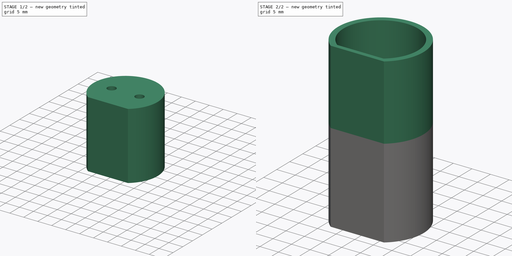
[diagram: build sequence overview — one tinted view per stage of 2, left to right]
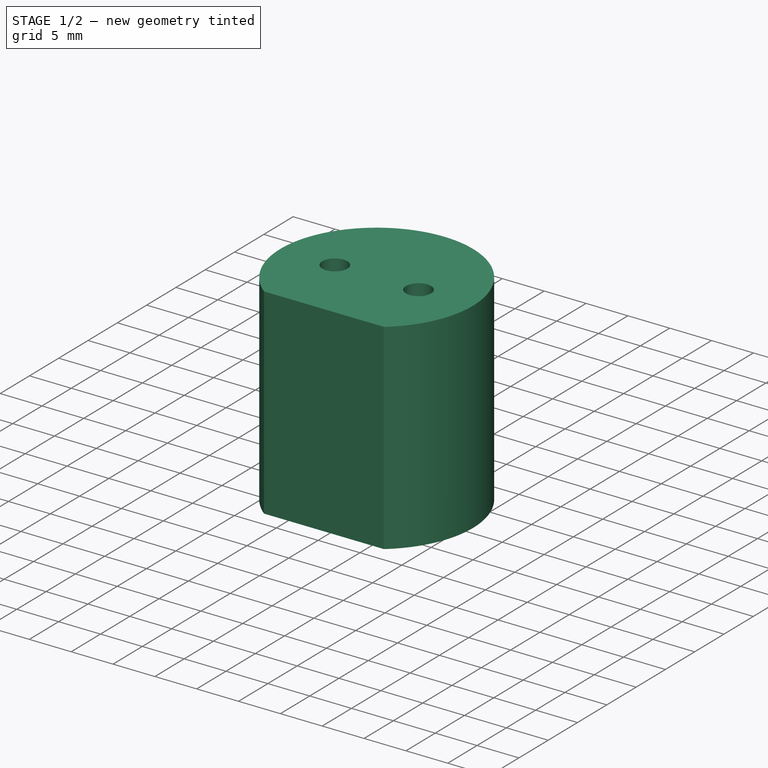
[diagram: stage 1 of 2 — iso view after this stage's code; geometry added in this stage tinted green]
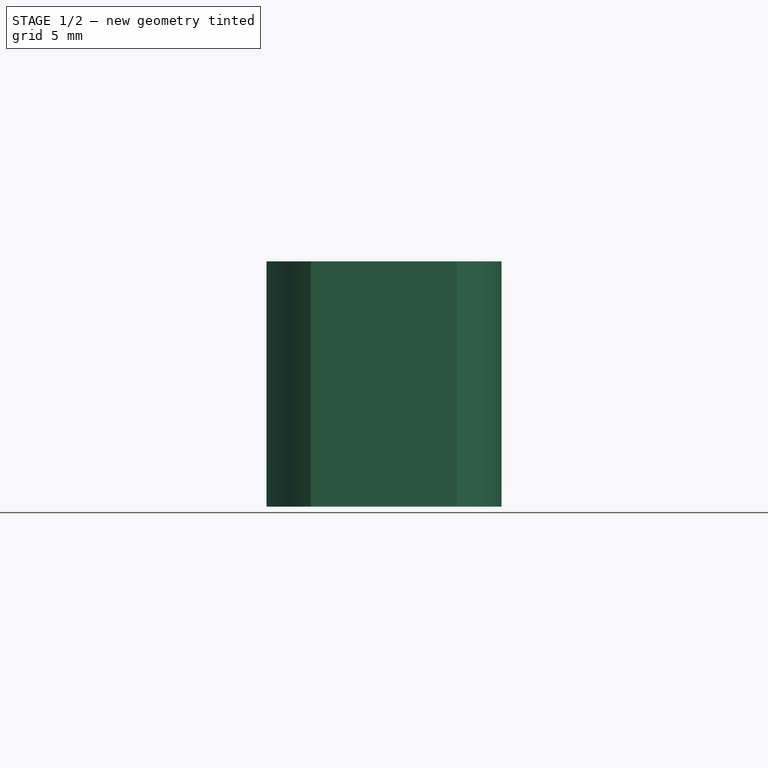
[diagram: stage 1 of 2 — front view after this stage's code; geometry added in this stage tinted green]
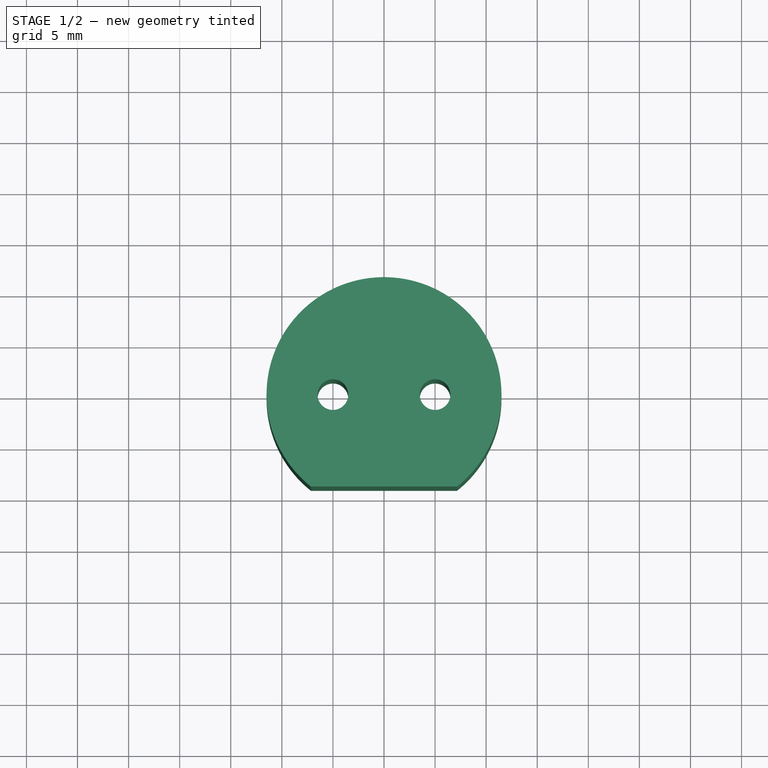
[diagram: stage 1 of 2 — top view after this stage's code; geometry added in this stage tinted green]
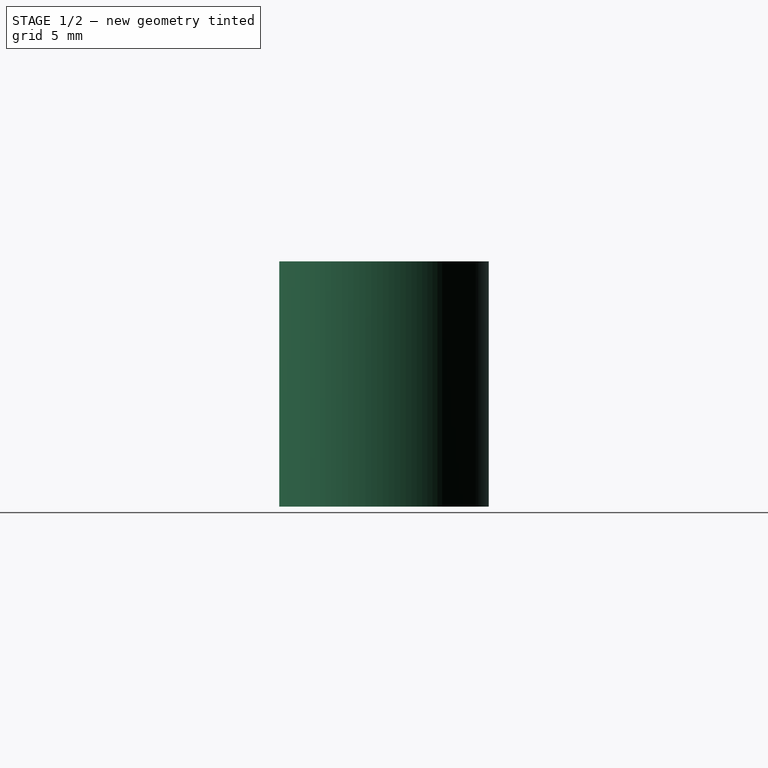
[diagram: stage 1 of 2 — right view after this stage's code; geometry added in this stage tinted green]
FCSTD DOCUMENT  (FreeCAD 0.18R16146 (Git))
Label: bottom
License: All rights reserved
LicenseURL: http://en.wikipedia.org/wiki/All_rights_reserved
objects: Sketcher::SketchObject×2, PartDesign::Pad×2, PartDesign::Body×2
note: 8 computed .brp shape members not serialized (recipe doc carries the construction recipe); baked Part::Feature solids carry a one-line shape summary decoded from their .brp

FEATURE [Sketcher::SketchObject] Sketch
  MapMode = 5
  Support = -> [XY_Plane]
  sketch-geometry (6):
    g0: Circle [constr] CenterX=0 CenterY=0 CenterZ=0 NormalX=0 NormalY=0 NormalZ=1 AngleXU=0 Radius=11.5
    g1: LineSegment StartX=-7.15891 StartY=-9 StartZ=0 EndX=7.15891 EndY=-9 EndZ=0
    g2: GeomPoint X=0 Y=11.5 Z=0
    g3: ArcOfCircle CenterX=8e-16 CenterY=-1e-16 CenterZ=0 NormalX=0 NormalY=0 NormalZ=1 AngleXU=0 Radius=11.5 StartAngle=5.38434 EndAngle=10.3236
    g4: Circle CenterX=-5 CenterY=0 CenterZ=0 NormalX=0 NormalY=0 NormalZ=1 AngleXU=0 Radius=1.5
    g5: Circle CenterX=5 CenterY=0 CenterZ=0 NormalX=0 NormalY=0 NormalZ=1 AngleXU=0 Radius=1.5
  constraints (17):
    c: Coincident(g0,g-1)
    c: Radius(g0) = 11.5
    c: PointOnObject(g1,g0)
    c: PointOnObject(g1,g0)
    c: Horizontal(g1)
    c: PointOnObject(g2,g-2)
    c: PointOnObject(g2,g0)
    c: Distance(g2,g1) = 20.5
    c: Coincident(g3,g1)
    c: Coincident(g3,g1)
    c: Radius(g3) = 11.5
    c: PointOnObject(g5,g-1)
    c: PointOnObject(g4,g-1)
    c: Distance(g4,g3) = 5
    c: Distance(g5,g3) = 5
    c: Radius(g5) = 1.5
    c: Radius(g4) = 1.5
FEATURE [PartDesign::Pad] Pad
  Length = 24
  Length2 = 100
  Profile = -> Sketch
  Type = 0
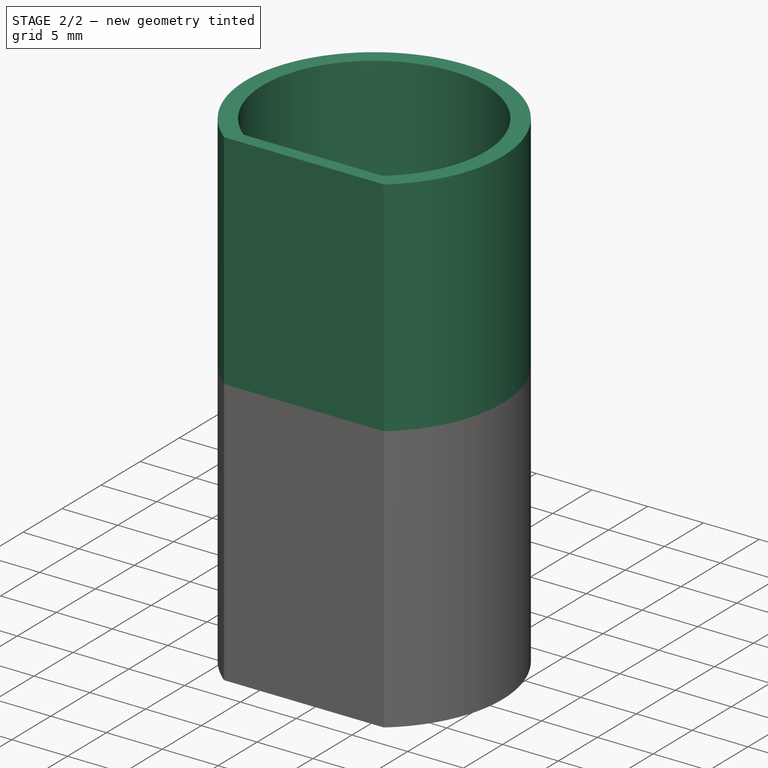
[diagram: stage 2 of 2 — iso view after this stage's code; geometry added in this stage tinted green]
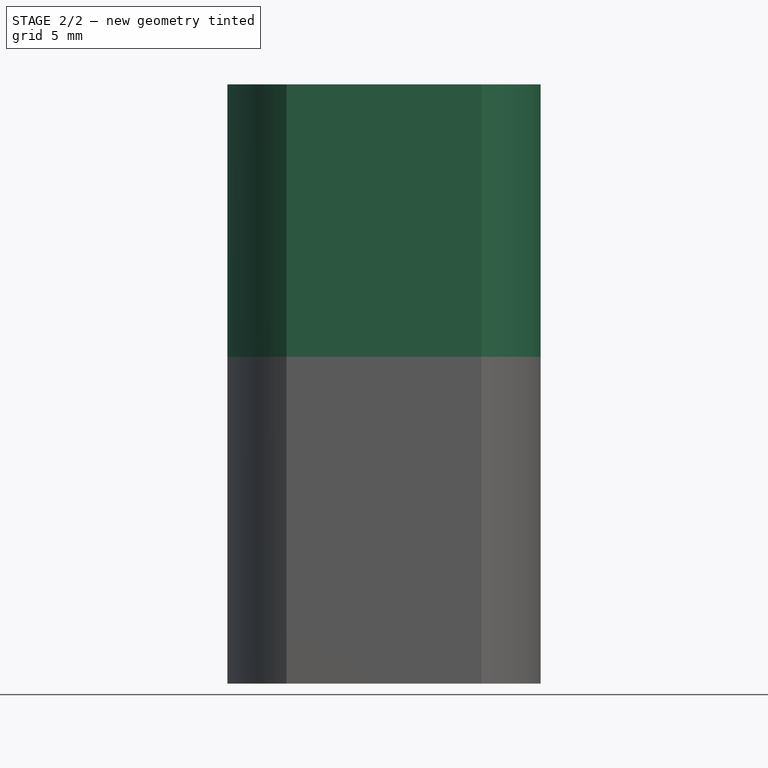
[diagram: stage 2 of 2 — front view after this stage's code; geometry added in this stage tinted green]
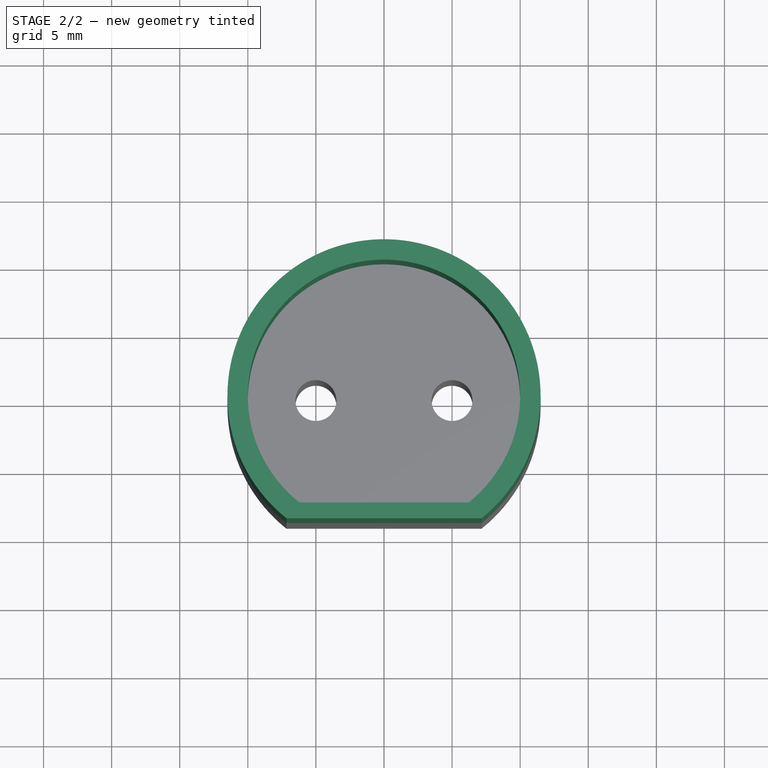
[diagram: stage 2 of 2 — top view after this stage's code; geometry added in this stage tinted green]
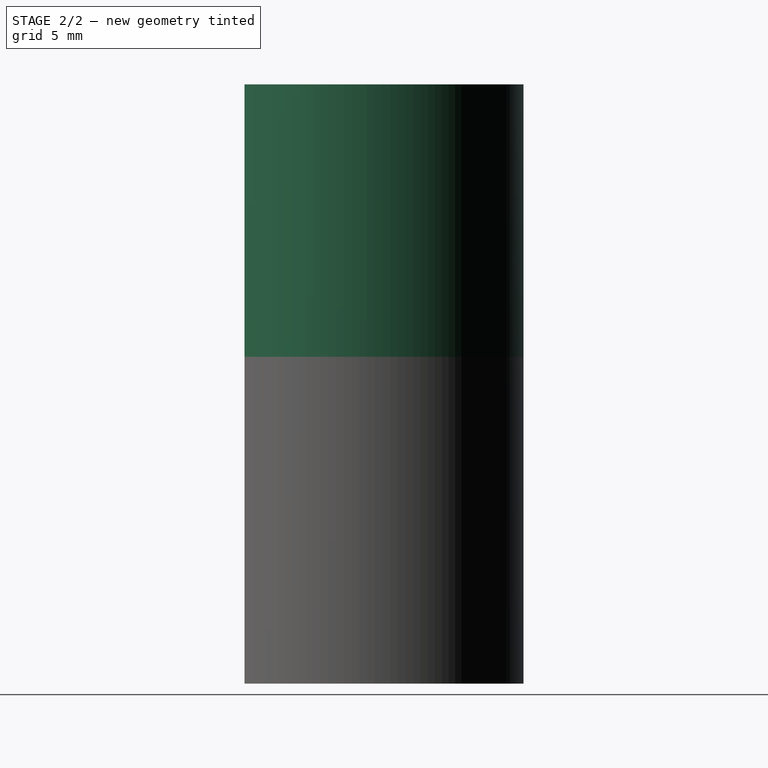
[diagram: stage 2 of 2 — right view after this stage's code; geometry added in this stage tinted green]
FEATURE [Sketcher::SketchObject] Sketch001
  MapMode = 5
  Placement = pos=(0,0,24) rot=(0,0,1;0rad)
  Support = -> [Pad]
  sketch-geometry (4):
    g0: ArcOfCircle CenterX=0 CenterY=0 CenterZ=0 NormalX=0 NormalY=0 NormalZ=1 AngleXU=0 Radius=11.5 StartAngle=5.38434 EndAngle=10.3236
    g1: LineSegment StartX=-7.15891 StartY=-9 StartZ=0 EndX=7.15891 EndY=-9 EndZ=0
    g2: ArcOfCircle CenterX=0 CenterY=0 CenterZ=0 NormalX=0 NormalY=0 NormalZ=1 AngleXU=0 Radius=10 StartAngle=5.38434 EndAngle=10.3236
    g3: LineSegment StartX=-6.22515 StartY=-7.82608 StartZ=0 EndX=6.22515 EndY=-7.82608 EndZ=0
  constraints (12):
    c: Coincident(g1,g0)
    c: Coincident(g0,g1)
    c: Coincident(g0,g-1)
    c: Horizontal(g1)
    c: Radius(g0) = 11.5
    c: Distance(g0,g1) = 9
    c: Coincident(g2,g0)
    c: Radius(g2) = 10
    c: Distance(g0,g2) = 1.5
    c: Horizontal(g3)
    c: Coincident(g3,g2)
    c: Coincident(g3,g2)
FEATURE [PartDesign::Pad] Pad001
  BaseFeature = -> Pad
  Length = 20
  Length2 = 100
  Profile = -> Sketch001
  Type = 0
FEATURE [PartDesign::Body] Body  label="lower"
  Group = -> [Sketch,Pad,Sketch001,Pad001]
  Origin = -> Origin
  Tip = -> Pad001
FEATURE [PartDesign::Body] Body001
  Origin = -> Origin001
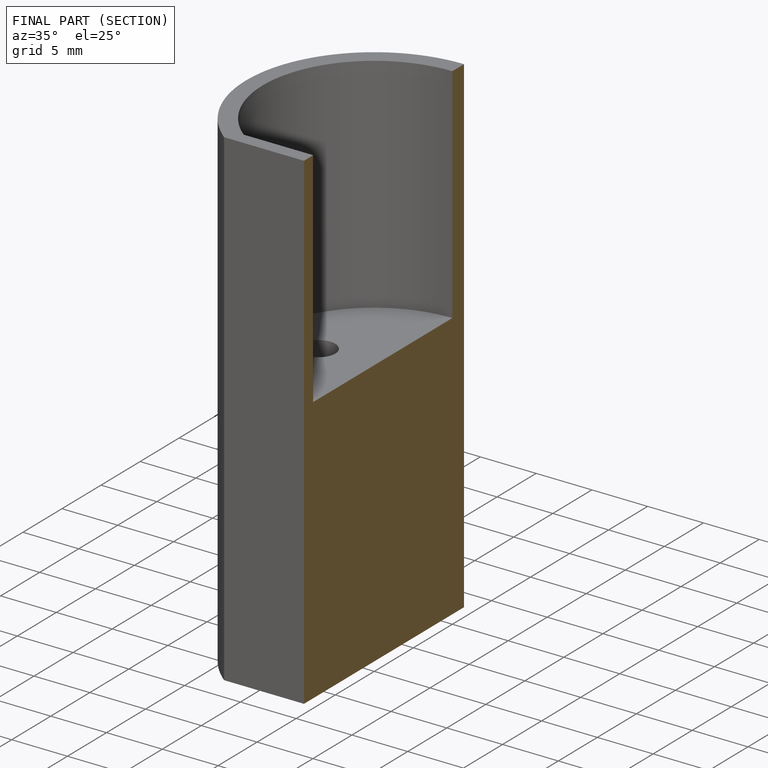
[diagram: finished part — half-section view (interior)]
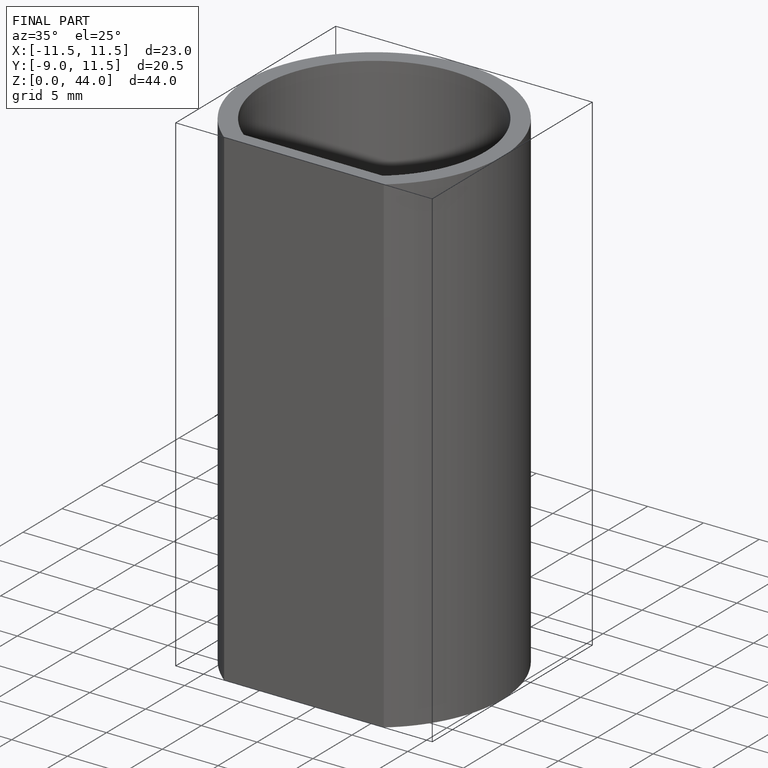
[diagram: finished part — iso view with bounding-box wireframe]
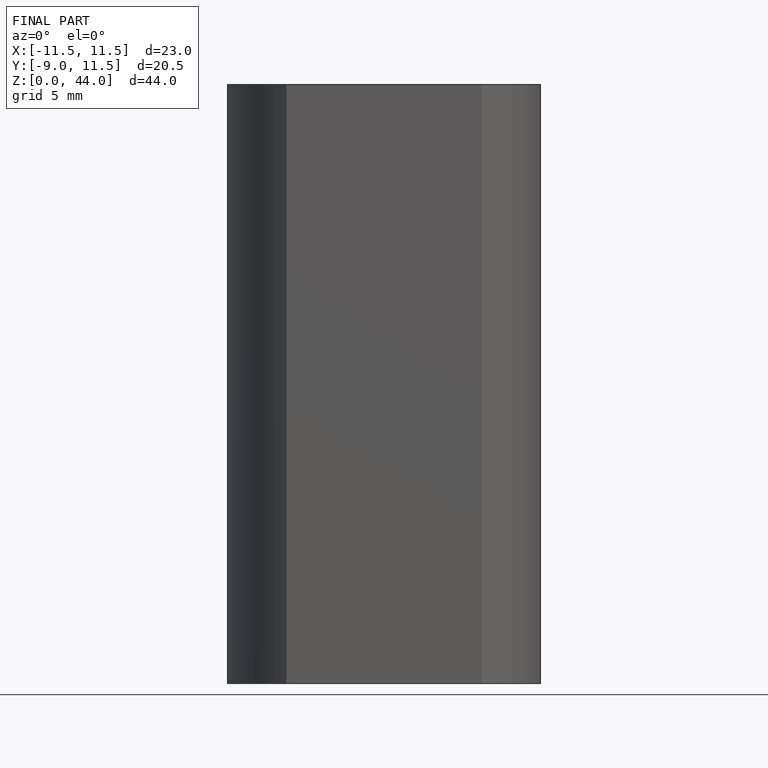
[diagram: finished part — front view with bounding-box wireframe]
